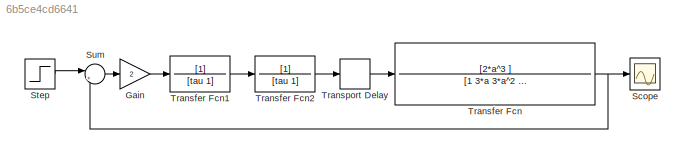
MODEL slx_6b5ce4cd6641
KIND model
BLOCK [Gain] Gain
  Gain = 2
  OutDataTypeStr = Inherit: Inherit via internal rule
  ParamDataTypeStr = Inherit: Inherit via internal rule
  SaturateOnIntegerOverflow = off
BLOCK [Scope] Scope
  Floating = off
  NumInputPorts = 1
  Ports = [1]
  SampleTime = 0
  SaveName = ScopeData2
  SaveToWorkspace = on
  ShowLegends = off
  TimeRange = 3
  YMax = 1.8
  YMin = 0
  ZoomMode = xonly
BLOCK [Step] Step
  SampleTime = 0
BLOCK [Sum] Sum
  IconShape = round
  InputSameDT = off
  Inputs = |+-
  OutDataTypeStr = Inherit: Inherit via internal rule
  Ports = [2, 1]
  SaturateOnIntegerOverflow = off
BLOCK [TransferFcn] Transfer Fcn
  Denominator = [1 3*a 3*a^2 a^3 ]
  Numerator = [2*a^3 ]
BLOCK [TransferFcn] Transfer Fcn1
  Denominator = [tau 1]
BLOCK [TransferFcn] Transfer Fcn2
  Denominator = [tau 1]
BLOCK [TransportDelay] Transport Delay
  DelayTime = .01
  Ports = [1, 1]
LINE Gain:1 -> Transfer Fcn1:1
LINE Step:1 -> Sum:1
LINE Sum:1 -> Gain:1
LINE Transfer Fcn1:1 -> Transfer Fcn2:1
LINE Transfer Fcn2:1 -> Transport Delay:1
NET Transfer Fcn:1 -> Scope:1, Sum:2
LINE Transport Delay:1 -> Transfer Fcn:1
note: NET lines group one-source signal fan-out (src -> all destinations, sorted); 1:1 wires keep LINE
